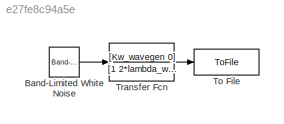
MODEL slx_e27fe8c94a5e
KIND model
CONFIG AbsTol = auto
CONFIG EnableMultiTasking = off
CONFIG FixedStep = auto
CONFIG MaxStep = auto
CONFIG MinStep = auto
CONFIG RelTol = 1e-3
CONFIG SampleTimeConstraint = Unconstrained
CONFIG Solver = VariableStepAuto
CONFIG SolverName = VariableStepAuto
CONFIG StartTime = 0.0
CONFIG StopTime = 10000
BLOCK [Reference] Band-Limited White Noise  REF=simulink/Sources/Band-Limited
White Noise
  Ports = [0, 1]
  SourceBlock = simulink/Sources/Band-Limited\nWhite Noise
  SourceProductBaseCode = SL
  SourceProductName = Simulink
  SourceType = Band-Limited White Noise.
BLOCK [ToFile] To File
  Filename = wave_fix.mat
  MatrixName = psi_w
  Ports = [1]
BLOCK [TransferFcn] Transfer Fcn
  Denominator = [1 2*lambda_wavegen*w0_wavegen w0_wavegen^2]
  Numerator = [Kw_wavegen 0]
LINE Band-Limited White Noise:1 -> Transfer Fcn:1
LINE Transfer Fcn:1 -> To File:1
